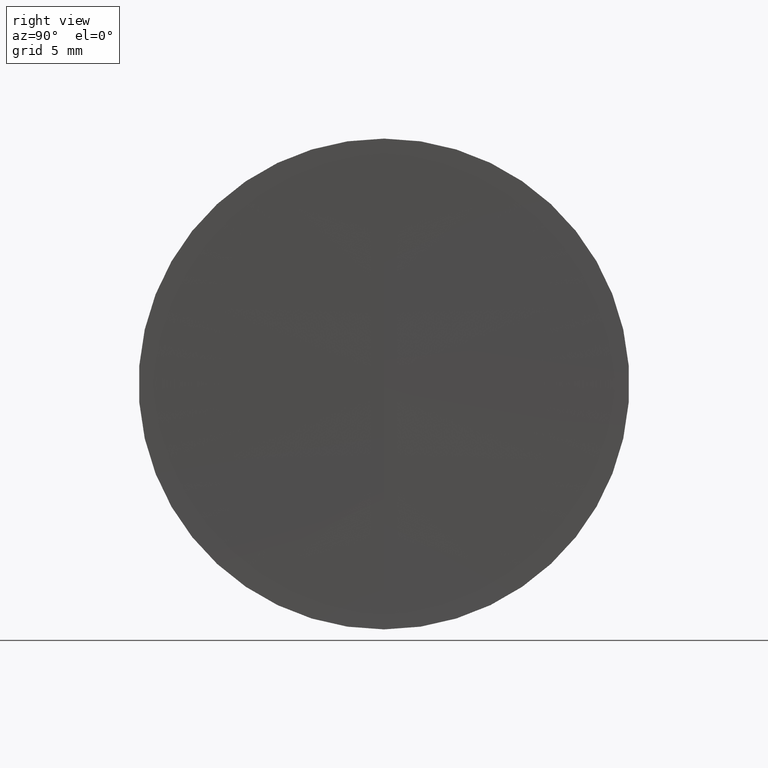
[diagram: clean part render]
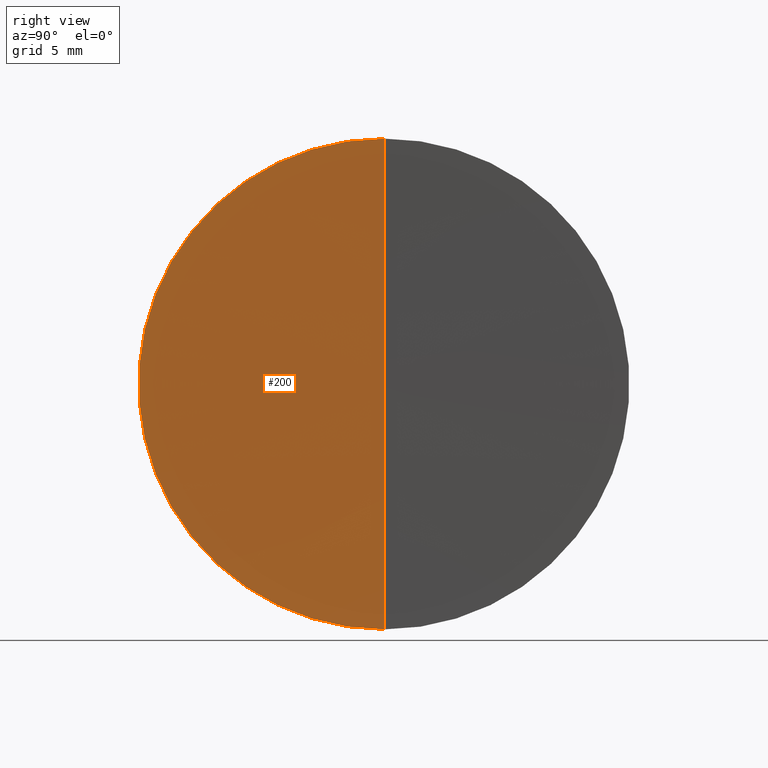
[diagram: same view with one face highlighted and labeled with its STEP entity id]
A machine part, right view. The second image highlights one B-rep face of the part: STEP entity #200.
In plain terms, the highlighted spherical surface has radius 930.5 mm.
Its self-contained STEP definition (entity closure, byte-faithful):
#2 = CIRCLE ( 'NONE', #263, 930.4999999999998900 ) ;
#10 = EDGE_LOOP ( 'NONE', ( #99, #272, #216 ) ) ;
#12 = CARTESIAN_POINT ( 'NONE',  ( 1254.165030046136300, 0.0000000000000000000, 0.0000000000000000000 ) ) ;
#24 = DIRECTION ( 'NONE',  ( 0.0000000000000000000, 1.224646799147353200E-016, -1.000000000000000000 ) ) ;
#36 = DIRECTION ( 'NONE',  ( 0.0000000000000000000, 0.0000000000000000000, -1.000000000000000000 ) ) ;
#44 = EDGE_CURVE ( 'NONE', #347, #318, #193, .T. ) ;
#51 = AXIS2_PLACEMENT_3D ( 'NONE', #82, #298, #267 ) ;
#76 = VERTEX_POINT ( 'NONE', #89 ) ;
#82 = CARTESIAN_POINT ( 'NONE',  ( 323.7517025405593900, 0.0000000000000000000, 0.0000000000000000000 ) ) ;
#88 = CARTESIAN_POINT ( 'NONE',  ( 1254.165030046136300, 0.0000000000000000000, 0.0000000000000000000 ) ) ;
#89 = CARTESIAN_POINT ( 'NONE',  ( 323.7517025405593900, 1.555301434917136700E-015, -12.69999999999997100 ) ) ;
#99 = ORIENTED_EDGE ( 'NONE', *, *, #44, .F. ) ;
#100 = EDGE_CURVE ( 'NONE', #76, #347, #184, .T. ) ;
#105 = CARTESIAN_POINT ( 'NONE',  ( 1254.165030046136300, 0.0000000000000000000, 0.0000000000000000000 ) ) ;
#141 = DIRECTION ( 'NONE',  ( -0.0000000000000000000, -1.000000000000000000, -0.0000000000000000000 ) ) ;
#151 = EDGE_CURVE ( 'NONE', #76, #318, #2, .T. ) ;
#184 = CIRCLE ( 'NONE', #51, 12.69999999999997100 ) ;
#193 = CIRCLE ( 'NONE', #258, 930.4999999999998900 ) ;
#200 = ADVANCED_FACE ( 'NONE', ( #221 ), #284, .F. ) ;
#216 = ORIENTED_EDGE ( 'NONE', *, *, #151, .T. ) ;
#221 = FACE_OUTER_BOUND ( 'NONE', #10, .T. ) ;
#224 = CARTESIAN_POINT ( 'NONE',  ( 323.6650300461363400, 0.0000000000000000000, -5.697669233033059700E-014 ) ) ;
#246 = AXIS2_PLACEMENT_3D ( 'NONE', #12, #141, #36 ) ;
#258 = AXIS2_PLACEMENT_3D ( 'NONE', #105, #293, #24 ) ;
#263 = AXIS2_PLACEMENT_3D ( 'NONE', #88, #335, #274 ) ;
#267 = DIRECTION ( 'NONE',  ( 0.0000000000000000000, 0.0000000000000000000, 1.000000000000000000 ) ) ;
#272 = ORIENTED_EDGE ( 'NONE', *, *, #100, .F. ) ;
#274 = DIRECTION ( 'NONE',  ( 0.0000000000000000000, 0.0000000000000000000, 1.000000000000000000 ) ) ;
#276 = CARTESIAN_POINT ( 'NONE',  ( 323.7517025405593900, 0.0000000000000000000, 12.69999999999997100 ) ) ;
#284 = SPHERICAL_SURFACE ( 'NONE', #246, 930.4999999999998900 ) ;
#293 = DIRECTION ( 'NONE',  ( 0.0000000000000000000, -1.000000000000000000, -1.224646799147353200E-016 ) ) ;
#298 = DIRECTION ( 'NONE',  ( -1.000000000000000000, -0.0000000000000000000, -0.0000000000000000000 ) ) ;
#318 = VERTEX_POINT ( 'NONE', #224 ) ;
#335 = DIRECTION ( 'NONE',  ( 0.0000000000000000000, 1.000000000000000000, -0.0000000000000000000 ) ) ;
#347 = VERTEX_POINT ( 'NONE', #276 ) ;